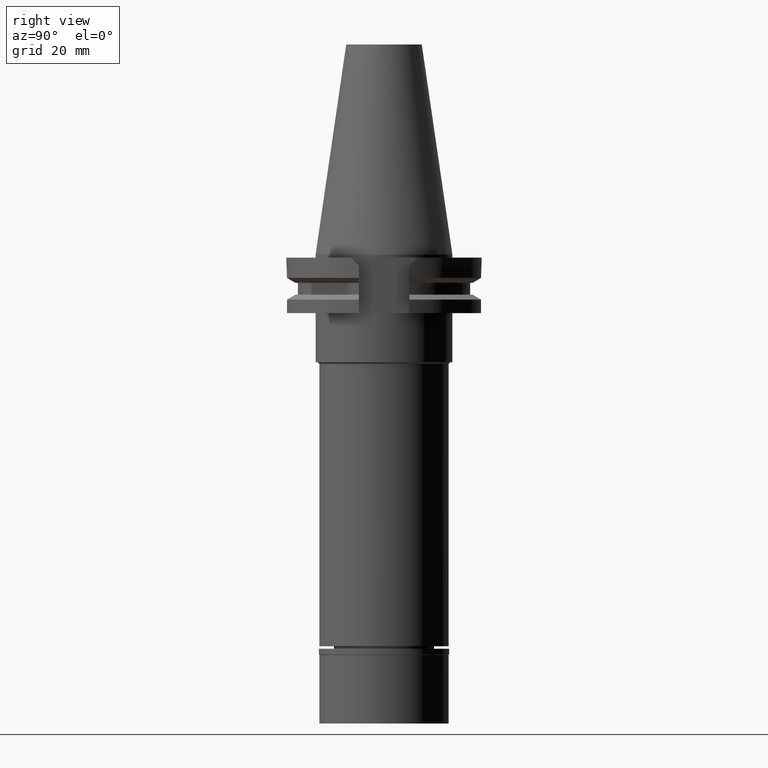
[diagram: clean part render]
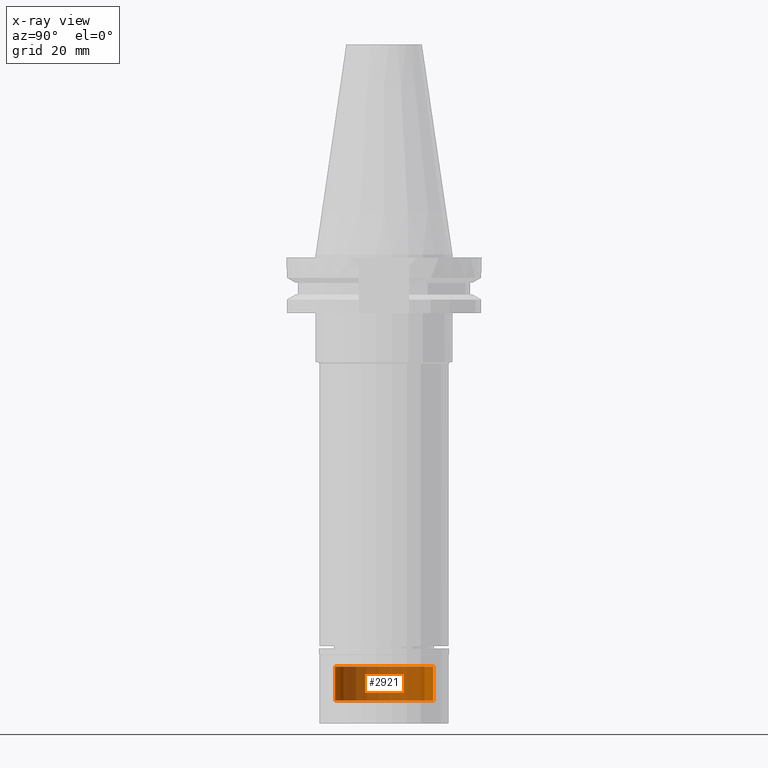
[diagram: x-ray — body ghosted, one internal face saturated and labeled with its STEP entity id]
A machine part, right view, then the same camera in x-ray: the body is ghosted and one INTERNAL B-rep face — a face not visible from any outside direction — is saturated and labeled: STEP entity #2921.
In plain terms, the highlighted cylindrical surface (partial cylindrical patch) has radius 16 mm, axis along (0, 0, -1).
Its self-contained STEP definition (entity closure, byte-faithful):
#56 = ORIENTED_EDGE ( 'NONE', *, *, #2176, .T. ) ;
#65 = CARTESIAN_POINT ( 'NONE',  ( 0.0000000000000000000, 16.00000000000000000, -144.9000000000000057 ) ) ;
#140 = CARTESIAN_POINT ( 'NONE',  ( 0.0000000000000000000, 2.190984972184999566E-14, 78.90749999999999886 ) ) ;
#222 = CARTESIAN_POINT ( 'NONE',  ( 0.0000000000000000000, 2.190984972184999566E-14, -144.9000000000000057 ) ) ;
#224 = AXIS2_PLACEMENT_3D ( 'NONE', #3042, #745, #2244 ) ;
#314 = LINE ( 'NONE', #1323, #819 ) ;
#334 = ORIENTED_EDGE ( 'NONE', *, *, #2801, .T. ) ;
#370 = CYLINDRICAL_SURFACE ( 'NONE', #1452, 16.00000000000000000 ) ;
#386 = DIRECTION ( 'NONE',  ( 0.0000000000000000000, -1.000000000000000000, 0.0000000000000000000 ) ) ;
#415 = DIRECTION ( 'NONE',  ( 0.0000000000000000000, 0.0000000000000000000, -1.000000000000000000 ) ) ;
#701 = AXIS2_PLACEMENT_3D ( 'NONE', #222, #1607, #1230 ) ;
#709 = CARTESIAN_POINT ( 'NONE',  ( 0.0000000000000000000, -16.00000000000000000, -133.8999999999999773 ) ) ;
#745 = DIRECTION ( 'NONE',  ( 0.0000000000000000000, 0.0000000000000000000, -1.000000000000000000 ) ) ;
#754 = VECTOR ( 'NONE', #415, 1000.000000000000000 ) ;
#811 = CIRCLE ( 'NONE', #224, 16.00000000000000000 ) ;
#819 = VECTOR ( 'NONE', #2329, 1000.000000000000000 ) ;
#863 = DIRECTION ( 'NONE',  ( 0.0000000000000000000, 0.0000000000000000000, -1.000000000000000000 ) ) ;
#1071 = CARTESIAN_POINT ( 'NONE',  ( 0.0000000000000000000, -16.00000000000000000, -133.8999999999999773 ) ) ;
#1117 = VERTEX_POINT ( 'NONE', #1071 ) ;
#1230 = DIRECTION ( 'NONE',  ( 0.0000000000000000000, 1.000000000000000000, 0.0000000000000000000 ) ) ;
#1323 = CARTESIAN_POINT ( 'NONE',  ( 0.0000000000000000000, 16.00000000000000000, -133.8999999999999773 ) ) ;
#1452 = AXIS2_PLACEMENT_3D ( 'NONE', #140, #863, #386 ) ;
#1474 = VERTEX_POINT ( 'NONE', #3055 ) ;
#1487 = ORIENTED_EDGE ( 'NONE', *, *, #2060, .F. ) ;
#1502 = EDGE_LOOP ( 'NONE', ( #334, #1487, #56, #3085 ) ) ;
#1607 = DIRECTION ( 'NONE',  ( 0.0000000000000000000, 0.0000000000000000000, 1.000000000000000000 ) ) ;
#1665 = CIRCLE ( 'NONE', #701, 16.00000000000000000 ) ;
#2060 = EDGE_CURVE ( 'NONE', #1117, #3244, #2156, .T. ) ;
#2156 = LINE ( 'NONE', #709, #754 ) ;
#2176 = EDGE_CURVE ( 'NONE', #1117, #1474, #811, .T. ) ;
#2244 = DIRECTION ( 'NONE',  ( 0.0000000000000000000, -1.000000000000000000, 0.0000000000000000000 ) ) ;
#2329 = DIRECTION ( 'NONE',  ( 0.0000000000000000000, 0.0000000000000000000, -1.000000000000000000 ) ) ;
#2372 = VERTEX_POINT ( 'NONE', #65 ) ;
#2524 = CARTESIAN_POINT ( 'NONE',  ( 0.0000000000000000000, -16.00000000000000000, -144.9000000000000057 ) ) ;
#2801 = EDGE_CURVE ( 'NONE', #2372, #3244, #1665, .T. ) ;
#2918 = FACE_OUTER_BOUND ( 'NONE', #1502, .T. ) ;
#2921 = ADVANCED_FACE ( 'NONE', ( #2918 ), #370, .T. ) ;
#3042 = CARTESIAN_POINT ( 'NONE',  ( 0.0000000000000000000, 2.190984972184999566E-14, -133.8999999999999773 ) ) ;
#3055 = CARTESIAN_POINT ( 'NONE',  ( 0.0000000000000000000, 16.00000000000000000, -133.8999999999999773 ) ) ;
#3085 = ORIENTED_EDGE ( 'NONE', *, *, #3274, .T. ) ;
#3244 = VERTEX_POINT ( 'NONE', #2524 ) ;
#3274 = EDGE_CURVE ( 'NONE', #1474, #2372, #314, .T. ) ;